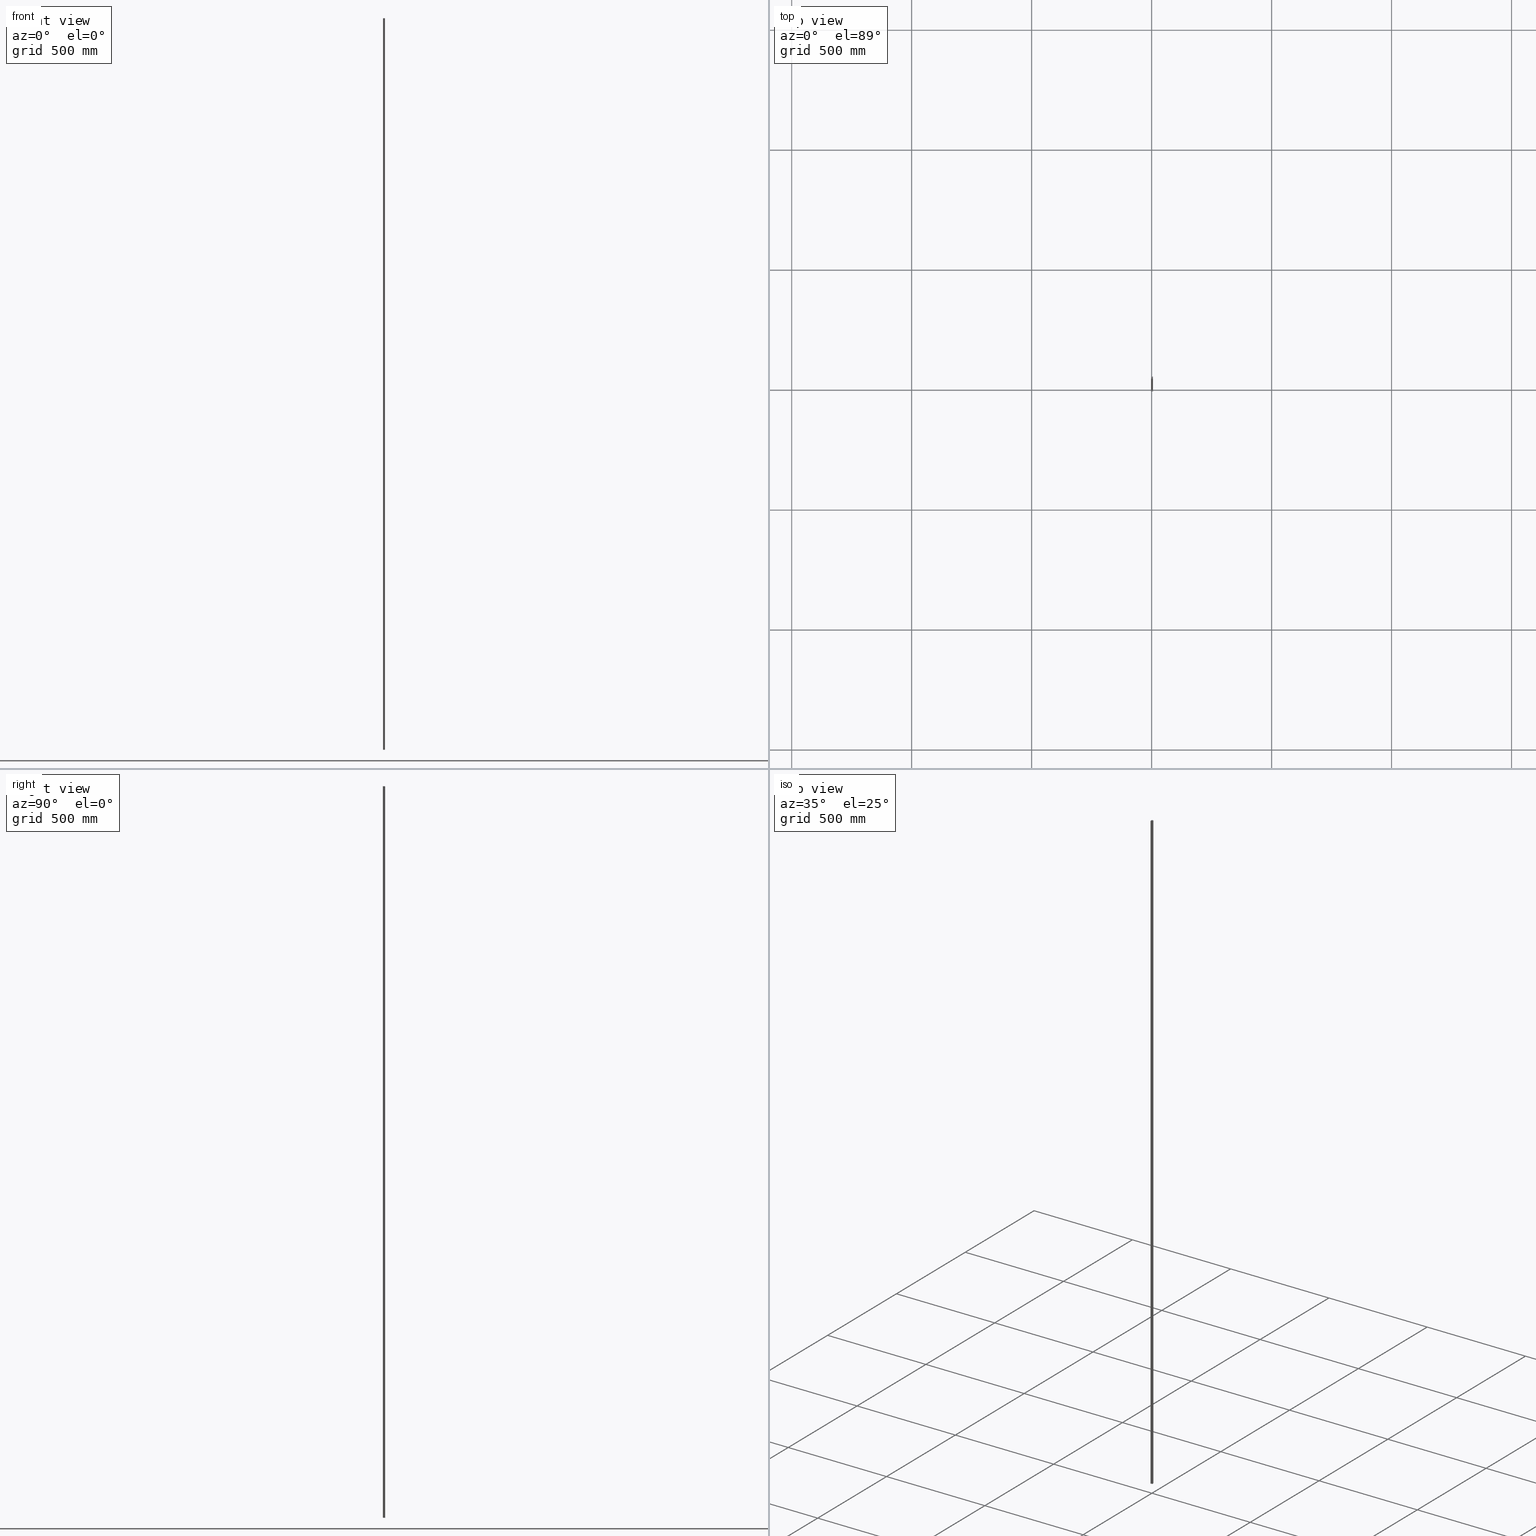
[diagram: canonical four-view strip — front | top / right | iso, engineering-drawing reading convention]
A machine part, canonical four-view strip (front | top / right | iso — engineering-drawing reading convention). The complete STEP part file that produces these views, byte-faithful:
ISO-10303-21;
HEADER;
/****************************************************************
 * Generated by software with PDElib inside                    *
 * PDElib Version v51a, created Wed 07/06/2011                  *
 * ITI Transcendata (http://www.transcendata.com/)              *
 ****************************************************************/
FILE_DESCRIPTION((''),'2;1');
FILE_NAME('C:\\!SERVER\\6_Mason Plastics\\INVENTOR\\EXTRUSIONS\\STEP\\MP-18SBC-10.ipt.step','2012-05-30T15:12:45',(''),(''),'Autodesk Inventor 2012','Autodesk Inventor 2012','');
FILE_SCHEMA(('AUTOMOTIVE_DESIGN { 1 0 10303 214 1 1 1 1 }'));
ENDSEC;
DATA;
#5=APPLICATION_CONTEXT('automotive design');
#6=APPLICATION_PROTOCOL_DEFINITION('International Standard','automotive_design',2001,#5);
#7=PRODUCT_CONTEXT('',#5,'mechanical');
#8=PRODUCT('MP-18SBC-10','MP-18SBC-10',$,(#7));
#9=PRODUCT_RELATED_PRODUCT_CATEGORY('part',$,(#8));
#10=PRODUCT_DEFINITION_FORMATION('',$,#8);
#11=PRODUCT_DEFINITION_CONTEXT('part definition',#5,'design');
#12=PRODUCT_DEFINITION('',$,#10,#11);
#18=(NAMED_UNIT(*)PLANE_ANGLE_UNIT()SI_UNIT($,.RADIAN.));
#19=DIMENSIONAL_EXPONENTS(0.0,0.0,0.0,0.0,0.0,0.0,0.0);
#20=PLANE_ANGLE_MEASURE_WITH_UNIT(PLANE_ANGLE_MEASURE(0.0174532925),#18);
#24=(CONVERSION_BASED_UNIT('DEGREE',#20)NAMED_UNIT(#19)PLANE_ANGLE_UNIT());
#28=(NAMED_UNIT(*)SI_UNIT($,.STERADIAN.)SOLID_ANGLE_UNIT());
#32=(LENGTH_UNIT()NAMED_UNIT(*)SI_UNIT(.CENTI.,.METRE.));
#33=DIMENSIONAL_EXPONENTS(1.0,0.0,0.0,0.0,0.0,0.0,0.0);
#34=LENGTH_MEASURE_WITH_UNIT(LENGTH_MEASURE(2.54),#32);
#38=(CONVERSION_BASED_UNIT('INCH',#34)LENGTH_UNIT()NAMED_UNIT(#33));
#40=UNCERTAINTY_MEASURE_WITH_UNIT(LENGTH_MEASURE(0.000393700787402),#38,'DISTANCE_ACCURACY_VALUE','');
#42=(GEOMETRIC_REPRESENTATION_CONTEXT(3)GLOBAL_UNCERTAINTY_ASSIGNED_CONTEXT((#40))GLOBAL_UNIT_ASSIGNED_CONTEXT((#24,#28,#38))REPRESENTATION_CONTEXT('None','None'));
#43=AXIS2_PLACEMENT_3D('',#44,#45,#46);
#44=CARTESIAN_POINT('',(0.0,0.0,0.0));
#45=DIRECTION('',(0.0,0.0,1.0));
#46=DIRECTION('',(1.0,0.0,0.0));
#47=SHAPE_REPRESENTATION('',(#43),#42);
#48=PRODUCT_DEFINITION_SHAPE('','',#12);
#49=SHAPE_DEFINITION_REPRESENTATION(#48,#47);
#55=(NAMED_UNIT(*)PLANE_ANGLE_UNIT()SI_UNIT($,.RADIAN.));
#56=DIMENSIONAL_EXPONENTS(0.0,0.0,0.0,0.0,0.0,0.0,0.0);
#57=PLANE_ANGLE_MEASURE_WITH_UNIT(PLANE_ANGLE_MEASURE(0.0174532925),#55);
#61=(CONVERSION_BASED_UNIT('DEGREE',#57)NAMED_UNIT(#56)PLANE_ANGLE_UNIT());
#65=(NAMED_UNIT(*)SI_UNIT($,.STERADIAN.)SOLID_ANGLE_UNIT());
#69=(LENGTH_UNIT()NAMED_UNIT(*)SI_UNIT(.MILLI.,.METRE.));
#71=UNCERTAINTY_MEASURE_WITH_UNIT(LENGTH_MEASURE(0.000001),#69,'DISTANCE_ACCURACY_VALUE','');
#73=(GEOMETRIC_REPRESENTATION_CONTEXT(3)GLOBAL_UNCERTAINTY_ASSIGNED_CONTEXT((#71))GLOBAL_UNIT_ASSIGNED_CONTEXT((#61,#65,#69))REPRESENTATION_CONTEXT('','3D'));
#74=CARTESIAN_POINT('',(0.18625,0.09875,0.0));
#75=DIRECTION('',(0.0,0.0,-1.0));
#76=DIRECTION('',(0.707106781186548,0.707106781186548,0.0));
#77=AXIS2_PLACEMENT_3D('',#74,#75,#76);
#78=CYLINDRICAL_SURFACE('',#77,0.03125);
#79=CARTESIAN_POINT('',(0.2175,0.09875,-60.000000000000007));
#80=VERTEX_POINT('',#79);
#81=CARTESIAN_POINT('',(0.18625,0.13,-60.000000000000007));
#82=VERTEX_POINT('',#81);
#83=CARTESIAN_POINT('',(0.18625,0.09875,-60.000000000000007));
#84=DIRECTION('',(0.0,0.0,1.0));
#85=DIRECTION('',(0.707106781186548,0.707106781186548,0.0));
#86=AXIS2_PLACEMENT_3D('',#83,#84,#85);
#87=CIRCLE('',#86,0.03125);
#88=EDGE_CURVE('',#80,#82,#87,.T.);
#89=ORIENTED_EDGE('',*,*,#88,.T.);
#90=CARTESIAN_POINT('',(0.18625,0.13,60.000000000000007));
#91=VERTEX_POINT('',#90);
#92=CARTESIAN_POINT('',(0.18625,0.13,-60.000000000000007));
#93=DIRECTION('',(0.0,0.0,1.0));
#94=VECTOR('',#93,120.00000000000001);
#95=LINE('',#92,#94);
#96=EDGE_CURVE('',#82,#91,#95,.T.);
#97=ORIENTED_EDGE('',*,*,#96,.T.);
#98=CARTESIAN_POINT('',(0.2175,0.09875,60.000000000000007));
#99=VERTEX_POINT('',#98);
#100=CARTESIAN_POINT('',(0.18625,0.09875,60.000000000000007));
#101=DIRECTION('',(0.0,0.0,-1.0));
#102=DIRECTION('',(0.707106781186548,0.707106781186548,0.0));
#103=AXIS2_PLACEMENT_3D('',#100,#101,#102);
#104=CIRCLE('',#103,0.03125);
#105=EDGE_CURVE('',#91,#99,#104,.T.);
#106=ORIENTED_EDGE('',*,*,#105,.T.);
#107=CARTESIAN_POINT('',(0.2175,0.09875,60.000000000000007));
#108=DIRECTION('',(0.0,0.0,-1.0));
#109=VECTOR('',#108,120.00000000000001);
#110=LINE('',#107,#109);
#111=EDGE_CURVE('',#99,#80,#110,.T.);
#112=ORIENTED_EDGE('',*,*,#111,.T.);
#113=EDGE_LOOP('',(#89,#97,#106,#112));
#114=FACE_OUTER_BOUND('',#113,.T.);
#115=ADVANCED_FACE('',(#114),#78,.T.);
#116=CARTESIAN_POINT('',(-0.0925,0.13,0.0));
#117=DIRECTION('',(0.0,1.0,0.0));
#118=DIRECTION('',(0.0,0.0,1.0));
#119=AXIS2_PLACEMENT_3D('',#116,#117,#118);
#120=PLANE('',#119);
#121=ORIENTED_EDGE('',*,*,#96,.F.);
#122=CARTESIAN_POINT('',(-0.06125,0.13,-60.000000000000007));
#123=VERTEX_POINT('',#122);
#124=CARTESIAN_POINT('',(0.18625,0.13,-60.000000000000007));
#125=DIRECTION('',(-1.0,0.0,0.0));
#126=VECTOR('',#125,0.2475);
#127=LINE('',#124,#126);
#128=EDGE_CURVE('',#82,#123,#127,.T.);
#129=ORIENTED_EDGE('',*,*,#128,.T.);
#130=CARTESIAN_POINT('',(-0.06125,0.13,60.000000000000007));
#131=VERTEX_POINT('',#130);
#132=CARTESIAN_POINT('',(-0.06125,0.13,60.000000000000007));
#133=DIRECTION('',(0.0,0.0,-1.0));
#134=VECTOR('',#133,120.00000000000001);
#135=LINE('',#132,#134);
#136=EDGE_CURVE('',#131,#123,#135,.T.);
#137=ORIENTED_EDGE('',*,*,#136,.F.);
#138=CARTESIAN_POINT('',(-0.06125,0.13,60.000000000000007));
#139=DIRECTION('',(1.0,0.0,0.0));
#140=VECTOR('',#139,0.2475);
#141=LINE('',#138,#140);
#142=EDGE_CURVE('',#131,#91,#141,.T.);
#143=ORIENTED_EDGE('',*,*,#142,.T.);
#144=EDGE_LOOP('',(#121,#129,#137,#143));
#145=FACE_OUTER_BOUND('',#144,.T.);
#146=ADVANCED_FACE('',(#145),#120,.T.);
#147=CARTESIAN_POINT('',(0.0625,-0.057827067286578,-60.000000000000007));
#148=DIRECTION('',(0.0,0.0,1.0));
#149=DIRECTION('',(1.0,0.0,0.0));
#150=AXIS2_PLACEMENT_3D('',#147,#148,#149);
#151=PLANE('',#150);
#152=ORIENTED_EDGE('',*,*,#88,.F.);
#153=CARTESIAN_POINT('',(0.2175,-0.25,-60.000000000000007));
#154=VERTEX_POINT('',#153);
#155=CARTESIAN_POINT('',(0.2175,-0.25,-60.000000000000007));
#156=DIRECTION('',(0.0,1.0,0.0));
#157=VECTOR('',#156,0.34875);
#158=LINE('',#155,#157);
#159=EDGE_CURVE('',#154,#80,#158,.T.);
#160=ORIENTED_EDGE('',*,*,#159,.F.);
#161=CARTESIAN_POINT('',(0.15625,-0.25,-60.000000000000007));
#162=VERTEX_POINT('',#161);
#163=CARTESIAN_POINT('',(0.15625,-0.25,-60.000000000000007));
#164=DIRECTION('',(1.0,0.0,0.0));
#165=VECTOR('',#164,0.06125);
#166=LINE('',#163,#165);
#167=EDGE_CURVE('',#162,#154,#166,.T.);
#168=ORIENTED_EDGE('',*,*,#167,.F.);
#169=CARTESIAN_POINT('',(0.125,-0.21875,-60.000000000000007));
#170=VERTEX_POINT('',#169);
#171=CARTESIAN_POINT('',(0.15625,-0.21875,-60.000000000000007));
#172=DIRECTION('',(0.0,0.0,1.0));
#173=DIRECTION('',(1.0,0.0,0.0));
#174=AXIS2_PLACEMENT_3D('',#171,#172,#173);
#175=CIRCLE('',#174,0.03125);
#176=EDGE_CURVE('',#170,#162,#175,.T.);
#177=ORIENTED_EDGE('',*,*,#176,.F.);
#178=CARTESIAN_POINT('',(0.125,4.852737E-033,-60.000000000000007));
#179=VERTEX_POINT('',#178);
#180=CARTESIAN_POINT('',(0.125,0.0,-60.000000000000007));
#181=DIRECTION('',(0.0,-1.0,0.0));
#182=VECTOR('',#181,0.21875);
#183=LINE('',#180,#182);
#184=EDGE_CURVE('',#179,#170,#183,.T.);
#185=ORIENTED_EDGE('',*,*,#184,.F.);
#186=CARTESIAN_POINT('',(0.0,0.0,-60.000000000000007));
#187=VERTEX_POINT('',#186);
#188=CARTESIAN_POINT('',(0.0,0.0,-60.000000000000007));
#189=DIRECTION('',(1.0,0.0,0.0));
#190=VECTOR('',#189,0.125);
#191=LINE('',#188,#190);
#192=EDGE_CURVE('',#187,#179,#191,.T.);
#193=ORIENTED_EDGE('',*,*,#192,.F.);
#194=CARTESIAN_POINT('',(2.185478E-017,-0.21875,-60.000000000000007));
#195=VERTEX_POINT('',#194);
#196=CARTESIAN_POINT('',(2.185478E-017,-0.21875,-60.000000000000007));
#197=DIRECTION('',(0.0,1.0,0.0));
#198=VECTOR('',#197,0.21875);
#199=LINE('',#196,#198);
#200=EDGE_CURVE('',#195,#187,#199,.T.);
#201=ORIENTED_EDGE('',*,*,#200,.F.);
#202=CARTESIAN_POINT('',(-0.03125,-0.25,-60.000000000000007));
#203=VERTEX_POINT('',#202);
#204=CARTESIAN_POINT('',(-0.03125,-0.21875,-60.000000000000007));
#205=DIRECTION('',(0.0,0.0,1.0));
#206=DIRECTION('',(0.0,1.0,0.0));
#207=AXIS2_PLACEMENT_3D('',#204,#205,#206);
#208=CIRCLE('',#207,0.03125);
#209=EDGE_CURVE('',#203,#195,#208,.T.);
#210=ORIENTED_EDGE('',*,*,#209,.F.);
#211=CARTESIAN_POINT('',(-0.0925,-0.25,-60.000000000000007));
#212=VERTEX_POINT('',#211);
#213=CARTESIAN_POINT('',(-0.0925,-0.25,-60.000000000000007));
#214=DIRECTION('',(1.0,0.0,0.0));
#215=VECTOR('',#214,0.06125);
#216=LINE('',#213,#215);
#217=EDGE_CURVE('',#212,#203,#216,.T.);
#218=ORIENTED_EDGE('',*,*,#217,.F.);
#219=CARTESIAN_POINT('',(-0.0925,0.09875,-60.000000000000007));
#220=VERTEX_POINT('',#219);
#221=CARTESIAN_POINT('',(-0.0925,0.09875,-60.000000000000007));
#222=DIRECTION('',(0.0,-1.0,0.0));
#223=VECTOR('',#222,0.34875);
#224=LINE('',#221,#223);
#225=EDGE_CURVE('',#220,#212,#224,.T.);
#226=ORIENTED_EDGE('',*,*,#225,.F.);
#227=CARTESIAN_POINT('',(-0.06125,0.09875,-60.000000000000007));
#228=DIRECTION('',(0.0,0.0,1.0));
#229=DIRECTION('',(-0.707106781186548,0.707106781186548,0.0));
#230=AXIS2_PLACEMENT_3D('',#227,#228,#229);
#231=CIRCLE('',#230,0.03125);
#232=EDGE_CURVE('',#123,#220,#231,.T.);
#233=ORIENTED_EDGE('',*,*,#232,.F.);
#234=ORIENTED_EDGE('',*,*,#128,.F.);
#235=EDGE_LOOP('',(#152,#160,#168,#177,#185,#193,#201,#210,#218,#226,#233,#234));
#236=FACE_OUTER_BOUND('',#235,.T.);
#237=ADVANCED_FACE('',(#236),#151,.F.);
#238=CARTESIAN_POINT('',(-0.06125,0.09875,0.0));
#239=DIRECTION('',(0.0,0.0,-1.0));
#240=DIRECTION('',(-0.707106781186548,0.707106781186548,0.0));
#241=AXIS2_PLACEMENT_3D('',#238,#239,#240);
#242=CYLINDRICAL_SURFACE('',#241,0.03125);
#243=ORIENTED_EDGE('',*,*,#232,.T.);
#244=CARTESIAN_POINT('',(-0.0925,0.09875,60.000000000000007));
#245=VERTEX_POINT('',#244);
#246=CARTESIAN_POINT('',(-0.0925,0.09875,-60.000000000000007));
#247=DIRECTION('',(0.0,0.0,1.0));
#248=VECTOR('',#247,120.00000000000001);
#249=LINE('',#246,#248);
#250=EDGE_CURVE('',#220,#245,#249,.T.);
#251=ORIENTED_EDGE('',*,*,#250,.T.);
#252=CARTESIAN_POINT('',(-0.06125,0.09875,60.000000000000007));
#253=DIRECTION('',(0.0,0.0,-1.0));
#254=DIRECTION('',(-0.707106781186548,0.707106781186548,0.0));
#255=AXIS2_PLACEMENT_3D('',#252,#253,#254);
#256=CIRCLE('',#255,0.03125);
#257=EDGE_CURVE('',#245,#131,#256,.T.);
#258=ORIENTED_EDGE('',*,*,#257,.T.);
#259=ORIENTED_EDGE('',*,*,#136,.T.);
#260=EDGE_LOOP('',(#243,#251,#258,#259));
#261=FACE_OUTER_BOUND('',#260,.T.);
#262=ADVANCED_FACE('',(#261),#242,.T.);
#263=CARTESIAN_POINT('',(-0.0925,-0.25,0.0));
#264=DIRECTION('',(-1.0,0.0,0.0));
#265=DIRECTION('',(0.0,0.0,1.0));
#266=AXIS2_PLACEMENT_3D('',#263,#264,#265);
#267=PLANE('',#266);
#268=ORIENTED_EDGE('',*,*,#250,.F.);
#269=ORIENTED_EDGE('',*,*,#225,.T.);
#270=CARTESIAN_POINT('',(-0.0925,-0.25,60.000000000000007));
#271=VERTEX_POINT('',#270);
#272=CARTESIAN_POINT('',(-0.0925,-0.25,60.000000000000007));
#273=DIRECTION('',(0.0,0.0,-1.0));
#274=VECTOR('',#273,120.00000000000001);
#275=LINE('',#272,#274);
#276=EDGE_CURVE('',#271,#212,#275,.T.);
#277=ORIENTED_EDGE('',*,*,#276,.F.);
#278=CARTESIAN_POINT('',(-0.0925,-0.25,60.000000000000007));
#279=DIRECTION('',(0.0,1.0,0.0));
#280=VECTOR('',#279,0.34875);
#281=LINE('',#278,#280);
#282=EDGE_CURVE('',#271,#245,#281,.T.);
#283=ORIENTED_EDGE('',*,*,#282,.T.);
#284=EDGE_LOOP('',(#268,#269,#277,#283));
#285=FACE_OUTER_BOUND('',#284,.T.);
#286=ADVANCED_FACE('',(#285),#267,.T.);
#287=CARTESIAN_POINT('',(0.0,0.0,0.0));
#288=DIRECTION('',(1.0,0.0,0.0));
#289=DIRECTION('',(0.0,0.0,-1.0));
#290=AXIS2_PLACEMENT_3D('',#287,#288,#289);
#291=PLANE('',#290);
#292=CARTESIAN_POINT('',(0.0,0.0,60.000000000000007));
#293=VERTEX_POINT('',#292);
#294=CARTESIAN_POINT('',(2.185478E-017,-0.21875,60.000000000000007));
#295=VERTEX_POINT('',#294);
#296=CARTESIAN_POINT('',(0.0,0.0,60.000000000000007));
#297=DIRECTION('',(0.0,-1.0,0.0));
#298=VECTOR('',#297,0.21875);
#299=LINE('',#296,#298);
#300=EDGE_CURVE('',#293,#295,#299,.T.);
#301=ORIENTED_EDGE('',*,*,#300,.T.);
#302=CARTESIAN_POINT('',(2.185478E-017,-0.21875,60.000000000000007));
#303=DIRECTION('',(0.0,0.0,-1.0));
#304=VECTOR('',#303,120.00000000000001);
#305=LINE('',#302,#304);
#306=EDGE_CURVE('',#295,#195,#305,.T.);
#307=ORIENTED_EDGE('',*,*,#306,.T.);
#308=ORIENTED_EDGE('',*,*,#200,.T.);
#309=CARTESIAN_POINT('',(0.0,0.0,60.000000000000007));
#310=DIRECTION('',(0.0,0.0,-1.0));
#311=VECTOR('',#310,120.00000000000001);
#312=LINE('',#309,#311);
#313=EDGE_CURVE('',#293,#187,#312,.T.);
#314=ORIENTED_EDGE('',*,*,#313,.F.);
#315=EDGE_LOOP('',(#301,#307,#308,#314));
#316=FACE_OUTER_BOUND('',#315,.T.);
#317=ADVANCED_FACE('',(#316),#291,.T.);
#318=CARTESIAN_POINT('',(-0.03125,-0.21875,0.0));
#319=DIRECTION('',(0.0,0.0,1.0));
#320=DIRECTION('',(0.0,1.0,0.0));
#321=AXIS2_PLACEMENT_3D('',#318,#319,#320);
#322=CYLINDRICAL_SURFACE('',#321,0.03125);
#323=CARTESIAN_POINT('',(-0.03125,-0.25,60.000000000000007));
#324=VERTEX_POINT('',#323);
#325=CARTESIAN_POINT('',(-0.03125,-0.21875,60.000000000000007));
#326=DIRECTION('',(0.0,0.0,-1.0));
#327=DIRECTION('',(0.0,1.0,0.0));
#328=AXIS2_PLACEMENT_3D('',#325,#326,#327);
#329=CIRCLE('',#328,0.03125);
#330=EDGE_CURVE('',#295,#324,#329,.T.);
#331=ORIENTED_EDGE('',*,*,#330,.T.);
#332=CARTESIAN_POINT('',(-0.03125,-0.25,60.000000000000007));
#333=DIRECTION('',(0.0,0.0,-1.0));
#334=VECTOR('',#333,120.00000000000001);
#335=LINE('',#332,#334);
#336=EDGE_CURVE('',#324,#203,#335,.T.);
#337=ORIENTED_EDGE('',*,*,#336,.T.);
#338=ORIENTED_EDGE('',*,*,#209,.T.);
#339=ORIENTED_EDGE('',*,*,#306,.F.);
#340=EDGE_LOOP('',(#331,#337,#338,#339));
#341=FACE_OUTER_BOUND('',#340,.T.);
#342=ADVANCED_FACE('',(#341),#322,.T.);
#343=CARTESIAN_POINT('',(-0.03125,-0.25,0.0));
#344=DIRECTION('',(0.0,-1.0,0.0));
#345=DIRECTION('',(0.0,0.0,-1.0));
#346=AXIS2_PLACEMENT_3D('',#343,#344,#345);
#347=PLANE('',#346);
#348=CARTESIAN_POINT('',(-0.03125,-0.25,60.000000000000007));
#349=DIRECTION('',(-1.0,0.0,0.0));
#350=VECTOR('',#349,0.06125);
#351=LINE('',#348,#350);
#352=EDGE_CURVE('',#324,#271,#351,.T.);
#353=ORIENTED_EDGE('',*,*,#352,.T.);
#354=ORIENTED_EDGE('',*,*,#276,.T.);
#355=ORIENTED_EDGE('',*,*,#217,.T.);
#356=ORIENTED_EDGE('',*,*,#336,.F.);
#357=EDGE_LOOP('',(#353,#354,#355,#356));
#358=FACE_OUTER_BOUND('',#357,.T.);
#359=ADVANCED_FACE('',(#358),#347,.T.);
#360=CARTESIAN_POINT('',(0.2175,0.13,0.0));
#361=DIRECTION('',(1.0,0.0,0.0));
#362=DIRECTION('',(0.0,0.0,-1.0));
#363=AXIS2_PLACEMENT_3D('',#360,#361,#362);
#364=PLANE('',#363);
#365=ORIENTED_EDGE('',*,*,#111,.F.);
#366=CARTESIAN_POINT('',(0.2175,-0.25,60.000000000000007));
#367=VERTEX_POINT('',#366);
#368=CARTESIAN_POINT('',(0.2175,0.09875,60.000000000000007));
#369=DIRECTION('',(0.0,-1.0,0.0));
#370=VECTOR('',#369,0.34875);
#371=LINE('',#368,#370);
#372=EDGE_CURVE('',#99,#367,#371,.T.);
#373=ORIENTED_EDGE('',*,*,#372,.T.);
#374=CARTESIAN_POINT('',(0.2175,-0.25,60.000000000000007));
#375=DIRECTION('',(0.0,0.0,-1.0));
#376=VECTOR('',#375,120.00000000000001);
#377=LINE('',#374,#376);
#378=EDGE_CURVE('',#367,#154,#377,.T.);
#379=ORIENTED_EDGE('',*,*,#378,.T.);
#380=ORIENTED_EDGE('',*,*,#159,.T.);
#381=EDGE_LOOP('',(#365,#373,#379,#380));
#382=FACE_OUTER_BOUND('',#381,.T.);
#383=ADVANCED_FACE('',(#382),#364,.T.);
#384=CARTESIAN_POINT('',(0.2175,-0.25,0.0));
#385=DIRECTION('',(0.0,-1.0,0.0));
#386=DIRECTION('',(0.0,0.0,-1.0));
#387=AXIS2_PLACEMENT_3D('',#384,#385,#386);
#388=PLANE('',#387);
#389=CARTESIAN_POINT('',(0.15625,-0.25,60.000000000000007));
#390=VERTEX_POINT('',#389);
#391=CARTESIAN_POINT('',(0.2175,-0.25,60.000000000000007));
#392=DIRECTION('',(-1.0,0.0,0.0));
#393=VECTOR('',#392,0.06125);
#394=LINE('',#391,#393);
#395=EDGE_CURVE('',#367,#390,#394,.T.);
#396=ORIENTED_EDGE('',*,*,#395,.T.);
#397=CARTESIAN_POINT('',(0.15625,-0.25,60.000000000000007));
#398=DIRECTION('',(0.0,0.0,-1.0));
#399=VECTOR('',#398,120.00000000000001);
#400=LINE('',#397,#399);
#401=EDGE_CURVE('',#390,#162,#400,.T.);
#402=ORIENTED_EDGE('',*,*,#401,.T.);
#403=ORIENTED_EDGE('',*,*,#167,.T.);
#404=ORIENTED_EDGE('',*,*,#378,.F.);
#405=EDGE_LOOP('',(#396,#402,#403,#404));
#406=FACE_OUTER_BOUND('',#405,.T.);
#407=ADVANCED_FACE('',(#406),#388,.T.);
#408=CARTESIAN_POINT('',(0.15625,-0.21875,0.0));
#409=DIRECTION('',(0.0,0.0,1.0));
#410=DIRECTION('',(1.0,0.0,0.0));
#411=AXIS2_PLACEMENT_3D('',#408,#409,#410);
#412=CYLINDRICAL_SURFACE('',#411,0.03125);
#413=CARTESIAN_POINT('',(0.125,-0.21875,60.000000000000007));
#414=VERTEX_POINT('',#413);
#415=CARTESIAN_POINT('',(0.15625,-0.21875,60.000000000000007));
#416=DIRECTION('',(0.0,0.0,-1.0));
#417=DIRECTION('',(1.0,0.0,0.0));
#418=AXIS2_PLACEMENT_3D('',#415,#416,#417);
#419=CIRCLE('',#418,0.03125);
#420=EDGE_CURVE('',#390,#414,#419,.T.);
#421=ORIENTED_EDGE('',*,*,#420,.T.);
#422=CARTESIAN_POINT('',(0.125,-0.21875,60.000000000000007));
#423=DIRECTION('',(0.0,0.0,-1.0));
#424=VECTOR('',#423,120.00000000000001);
#425=LINE('',#422,#424);
#426=EDGE_CURVE('',#414,#170,#425,.T.);
#427=ORIENTED_EDGE('',*,*,#426,.T.);
#428=ORIENTED_EDGE('',*,*,#176,.T.);
#429=ORIENTED_EDGE('',*,*,#401,.F.);
#430=EDGE_LOOP('',(#421,#427,#428,#429));
#431=FACE_OUTER_BOUND('',#430,.T.);
#432=ADVANCED_FACE('',(#431),#412,.T.);
#433=CARTESIAN_POINT('',(0.125,-0.21875,0.0));
#434=DIRECTION('',(-1.0,0.0,0.0));
#435=DIRECTION('',(0.0,0.0,1.0));
#436=AXIS2_PLACEMENT_3D('',#433,#434,#435);
#437=PLANE('',#436);
#438=CARTESIAN_POINT('',(0.125,4.852737E-033,60.000000000000007));
#439=VERTEX_POINT('',#438);
#440=CARTESIAN_POINT('',(0.125,-0.21875,60.000000000000007));
#441=DIRECTION('',(0.0,1.0,0.0));
#442=VECTOR('',#441,0.21875);
#443=LINE('',#440,#442);
#444=EDGE_CURVE('',#414,#439,#443,.T.);
#445=ORIENTED_EDGE('',*,*,#444,.T.);
#446=CARTESIAN_POINT('',(0.125,4.852737E-033,-60.000000000000007));
#447=DIRECTION('',(0.0,0.0,1.0));
#448=VECTOR('',#447,120.00000000000001);
#449=LINE('',#446,#448);
#450=EDGE_CURVE('',#179,#439,#449,.T.);
#451=ORIENTED_EDGE('',*,*,#450,.F.);
#452=ORIENTED_EDGE('',*,*,#184,.T.);
#453=ORIENTED_EDGE('',*,*,#426,.F.);
#454=EDGE_LOOP('',(#445,#451,#452,#453));
#455=FACE_OUTER_BOUND('',#454,.T.);
#456=ADVANCED_FACE('',(#455),#437,.T.);
#457=CARTESIAN_POINT('',(0.125,4.852737E-033,0.0));
#458=DIRECTION('',(0.0,-1.0,0.0));
#459=DIRECTION('',(0.0,0.0,-1.0));
#460=AXIS2_PLACEMENT_3D('',#457,#458,#459);
#461=PLANE('',#460);
#462=CARTESIAN_POINT('',(0.125,4.852737E-033,60.000000000000007));
#463=DIRECTION('',(-1.0,0.0,0.0));
#464=VECTOR('',#463,0.125);
#465=LINE('',#462,#464);
#466=EDGE_CURVE('',#439,#293,#465,.T.);
#467=ORIENTED_EDGE('',*,*,#466,.T.);
#468=ORIENTED_EDGE('',*,*,#313,.T.);
#469=ORIENTED_EDGE('',*,*,#192,.T.);
#470=ORIENTED_EDGE('',*,*,#450,.T.);
#471=EDGE_LOOP('',(#467,#468,#469,#470));
#472=FACE_OUTER_BOUND('',#471,.T.);
#473=ADVANCED_FACE('',(#472),#461,.T.);
#474=CARTESIAN_POINT('',(0.0625,-0.057827067286578,60.000000000000007));
#475=DIRECTION('',(0.0,0.0,1.0));
#476=DIRECTION('',(1.0,0.0,0.0));
#477=AXIS2_PLACEMENT_3D('',#474,#475,#476);
#478=PLANE('',#477);
#479=ORIENTED_EDGE('',*,*,#105,.F.);
#480=ORIENTED_EDGE('',*,*,#142,.F.);
#481=ORIENTED_EDGE('',*,*,#257,.F.);
#482=ORIENTED_EDGE('',*,*,#282,.F.);
#483=ORIENTED_EDGE('',*,*,#352,.F.);
#484=ORIENTED_EDGE('',*,*,#330,.F.);
#485=ORIENTED_EDGE('',*,*,#300,.F.);
#486=ORIENTED_EDGE('',*,*,#466,.F.);
#487=ORIENTED_EDGE('',*,*,#444,.F.);
#488=ORIENTED_EDGE('',*,*,#420,.F.);
#489=ORIENTED_EDGE('',*,*,#395,.F.);
#490=ORIENTED_EDGE('',*,*,#372,.F.);
#491=EDGE_LOOP('',(#479,#480,#481,#482,#483,#484,#485,#486,#487,#488,#489,#490));
#492=FACE_OUTER_BOUND('',#491,.T.);
#493=ADVANCED_FACE('',(#492),#478,.T.);
#494=CLOSED_SHELL('',(#115,#146,#237,#262,#286,#317,#342,#359,#383,#407,#432,#456,#473,#493));
#495=MANIFOLD_SOLID_BREP('Solid1',#494);
#496=DRAUGHTING_PRE_DEFINED_COLOUR('white');
#497=FILL_AREA_STYLE_COLOUR('Plastic (White)',#496);
#498=FILL_AREA_STYLE('Plastic (White)',(#497));
#499=SURFACE_STYLE_FILL_AREA(#498);
#500=SURFACE_SIDE_STYLE('Plastic (White)',(#499));
#501=SURFACE_STYLE_USAGE(.BOTH.,#500);
#502=PRESENTATION_STYLE_ASSIGNMENT((#501));
#503=STYLED_ITEM('',(#502),#495);
#504=MECHANICAL_DESIGN_GEOMETRIC_PRESENTATION_REPRESENTATION('',(#503),#42);
#505=ADVANCED_BREP_SHAPE_REPRESENTATION('ABSR',(#495),#42);
#506=SHAPE_REPRESENTATION_RELATIONSHIP('SRR','None',#505,#47);
ENDSEC;
END-ISO-10303-21;
